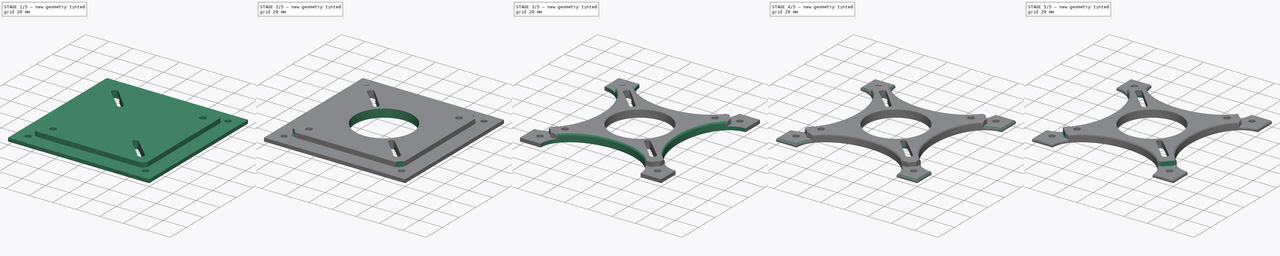
[diagram: build sequence overview — one tinted view per stage of 5, left to right]
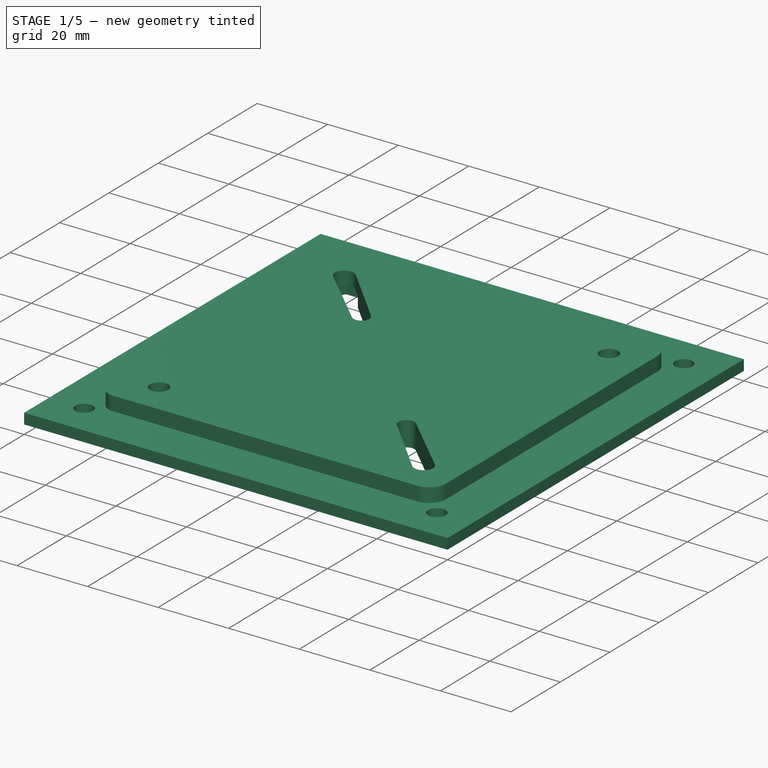
[diagram: stage 1 of 5 — iso view after this stage's code; geometry added in this stage tinted green]
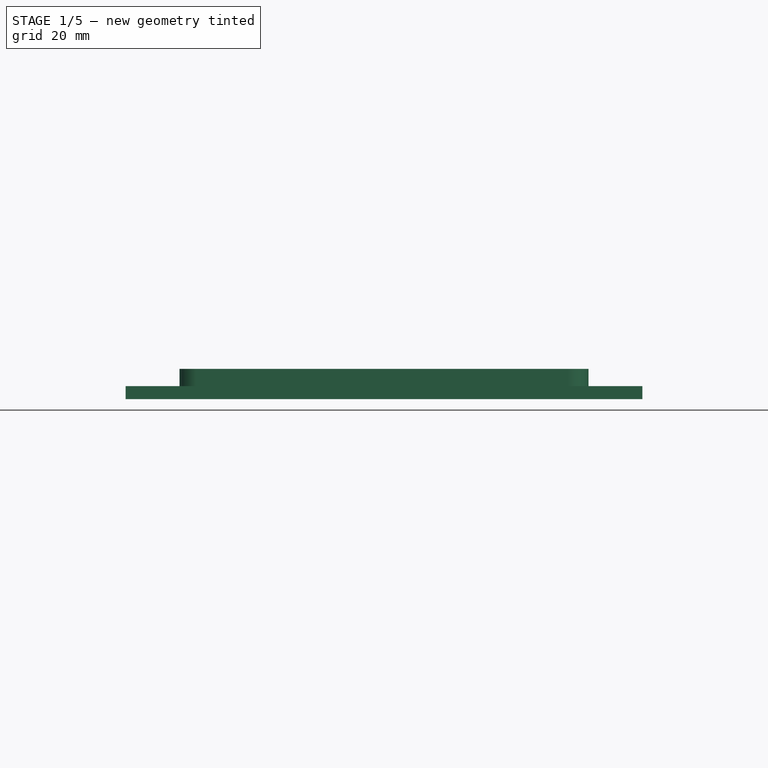
[diagram: stage 1 of 5 — front view after this stage's code; geometry added in this stage tinted green]
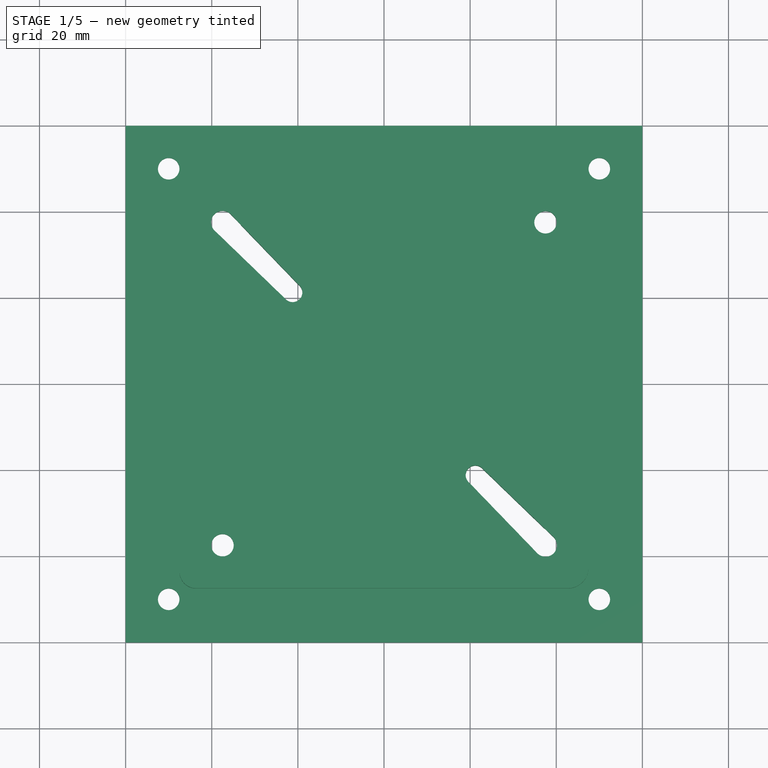
[diagram: stage 1 of 5 — top view after this stage's code; geometry added in this stage tinted green]
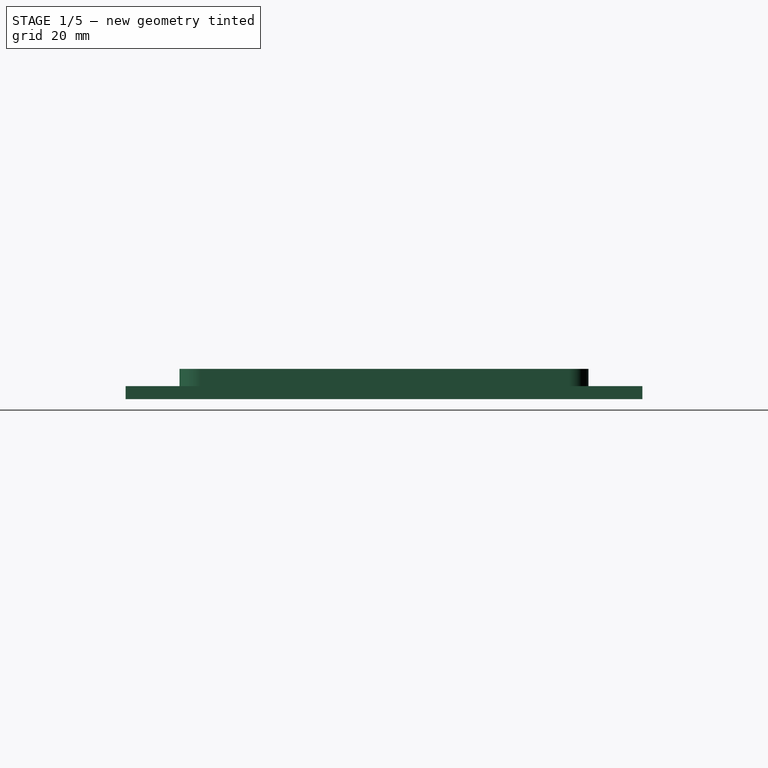
[diagram: stage 1 of 5 — right view after this stage's code; geometry added in this stage tinted green]
FCSTD DOCUMENT  (FreeCAD 0.16R4903 (Git))
Label: raspberry-vesa-support
License: All rights reserved
LicenseURL: http://en.wikipedia.org/wiki/All_rights_reserved
objects: Sketcher::SketchObject×8, PartDesign::Pocket×6, PartDesign::PolarPattern×5, PartDesign::Fillet×4, PartDesign::Pad×2, Part::Fillet×1, Part::Feature×1
note: 35 computed .brp shape members not serialized (recipe doc carries the construction recipe); baked Part::Feature solids carry a one-line shape summary decoded from their .brp

FEATURE [Sketcher::SketchObject] Sketch
  sketch-geometry (32):
    g0: LineSegment StartX=-60 StartY=60 StartZ=0 EndX=60 EndY=60 EndZ=0
    g1: LineSegment StartX=60 StartY=60 StartZ=0 EndX=60 EndY=-60 EndZ=0
    g2: LineSegment StartX=60 StartY=-60 StartZ=0 EndX=-60 EndY=-60 EndZ=0
    g3: LineSegment StartX=-60 StartY=-60 StartZ=0 EndX=-60 EndY=60 EndZ=0
    g4: Circle CenterX=-50 CenterY=50 CenterZ=0 NormalX=0 NormalY=0 NormalZ=1 Radius=2.5
    g5: Circle CenterX=50 CenterY=50 CenterZ=0 NormalX=0 NormalY=0 NormalZ=1 Radius=2.5
    g6: Circle CenterX=-50 CenterY=-50 CenterZ=0 NormalX=0 NormalY=0 NormalZ=1 Radius=2.5
    g7: Circle CenterX=50 CenterY=-50 CenterZ=0 NormalX=0 NormalY=0 NormalZ=1 Radius=2.5
    g8: LineSegment StartX=-39.8 StartY=41.4837 StartZ=0 EndX=-42.1 EndY=37.5 EndZ=0
    g9: LineSegment StartX=-42.1 StartY=37.5 StartZ=0 EndX=-39.8 EndY=33.5163 EndZ=0
    g10: LineSegment StartX=-39.8 StartY=33.5163 StartZ=0 EndX=-35.2 EndY=33.5163 EndZ=0
    g11: LineSegment StartX=-35.2 StartY=33.5163 StartZ=0 EndX=-32.9 EndY=37.5 EndZ=0
    g12: LineSegment StartX=-32.9 StartY=37.5 StartZ=0 EndX=-35.2 EndY=41.4837 EndZ=0
    g13: LineSegment StartX=-35.2 StartY=41.4837 StartZ=0 EndX=-39.8 EndY=41.4837 EndZ=0
    g14: LineSegment StartX=35.2 StartY=41.4837 StartZ=0 EndX=32.9 EndY=37.5 EndZ=0
    g15: LineSegment StartX=32.9 StartY=37.5 StartZ=0 EndX=35.2 EndY=33.5163 EndZ=0
    g16: LineSegment StartX=35.2 StartY=33.5163 StartZ=0 EndX=39.8 EndY=33.5163 EndZ=0
    g17: LineSegment StartX=39.8 StartY=33.5163 StartZ=0 EndX=42.1 EndY=37.5 EndZ=0
    g18: LineSegment StartX=42.1 StartY=37.5 StartZ=0 EndX=39.8 EndY=41.4837 EndZ=0
    g19: LineSegment StartX=39.8 StartY=41.4837 StartZ=0 EndX=35.2 EndY=41.4837 EndZ=0
    g20: LineSegment StartX=-35.2 StartY=-33.5163 StartZ=0 EndX=-39.8 EndY=-33.5163 EndZ=0
    g21: LineSegment StartX=-39.8 StartY=-33.5163 StartZ=0 EndX=-42.1 EndY=-37.5 EndZ=0
    g22: LineSegment StartX=-42.1 StartY=-37.5 StartZ=0 EndX=-39.8 EndY=-41.4837 EndZ=0
    g23: LineSegment StartX=-39.8 StartY=-41.4837 StartZ=0 EndX=-35.2 EndY=-41.4837 EndZ=0
    g24: LineSegment StartX=-35.2 StartY=-41.4837 StartZ=0 EndX=-32.9 EndY=-37.5 EndZ=0
    g25: LineSegment StartX=-32.9 StartY=-37.5 StartZ=0 EndX=-35.2 EndY=-33.5163 EndZ=0
    g26: LineSegment StartX=39.8 StartY=-33.5163 StartZ=0 EndX=35.2 EndY=-33.5163 EndZ=0
    g27: LineSegment StartX=35.2 StartY=-33.5163 StartZ=0 EndX=32.9 EndY=-37.5 EndZ=0
    g28: LineSegment StartX=32.9 StartY=-37.5 StartZ=0 EndX=35.2 EndY=-41.4837 EndZ=0
    g29: LineSegment StartX=35.2 StartY=-41.4837 StartZ=0 EndX=39.8 EndY=-41.4837 EndZ=0
    g30: LineSegment StartX=39.8 StartY=-41.4837 StartZ=0 EndX=42.1 EndY=-37.5 EndZ=0
    g31: LineSegment StartX=42.1 StartY=-37.5 StartZ=0 EndX=39.8 EndY=-33.5163 EndZ=0
  constraints (81):
    c: Coincident(g0,g1)
    c: Coincident(g1,g2)
    c: Coincident(g2,g3)
    c: Coincident(g3,g0)
    c: Horizontal(g0)
    c: Horizontal(g2)
    c: Vertical(g1)
    c: Vertical(g3)
    c: DistanceX(g0) = 120
    c: DistanceY(g3) = 120
    c: DistanceX(g4,g5) = 100
    c: Symmetric(g4,g5,g-2)
    c: Symmetric(g4,g6,g-1)
    c: Symmetric(g5,g7,g-1)
    c: DistanceY(g4,g6) = -100
    c: Symmetric(g0,g2,g-1)
    c: Symmetric(g0,g0,g-2)
    c: Radius(g4) = 2.5
    c: Radius(g5) = 2.5
    c: Radius(g6) = 2.5
    c: Radius(g7) = 2.5
    c: Coincident(g8,g9)
    c: Coincident(g9,g10)
    c: Coincident(g10,g11)
    c: Coincident(g11,g12)
    c: Coincident(g12,g13)
    c: Coincident(g13,g8)
    c: Equal(g11,g10)
    c: Equal(g10,g9)
    c: Equal(g9,g8)
    c: Equal(g8,g13)
    c: Equal(g13,g12)
    c: Angle(g9,g8) = 2.0944
    c: Angle(g13,g12) = 2.0944
    c: Angle(g11,g10) = 2.0944
    c: Horizontal(g13)
    c: Coincident(g14,g15)
    c: Coincident(g15,g16)
    c: Coincident(g16,g17)
    c: Coincident(g17,g18)
    c: Coincident(g18,g19)
    c: Coincident(g19,g14)
    c: Equal(g14,g19)
    c: Equal(g19,g15)
    c: Equal(g15,g16)
    c: Equal(g16,g17)
    c: Equal(g17,g18)
    c: Angle(g17,g16) = 2.0944
    c: Angle(g15,g14) = 2.0944
    c: Angle(g19,g18) = 2.0944
    c: Horizontal(g19)
    c: Coincident(g20,g21)
    c: Coincident(g21,g22)
    c: Coincident(g22,g23)
    c: Coincident(g23,g24)
    c: Coincident(g24,g25)
    c: Coincident(g25,g20)
    c: Equal(g21,g20)
    c: Equal(g20,g25)
    c: Equal(g25,g24)
    c: Equal(g24,g23)
    c: Equal(g23,g22)
    c: Angle(g21,g20) = 2.0944
    c: Angle(g23,g22) = 2.0944
    c: Angle(g25,g24) = 2.0944
    c: Horizontal(g20)
    c: Coincident(g26,g27)
    c: Coincident(g27,g28)
    c: Coincident(g28,g29)
    c: Coincident(g29,g30)
    c: Coincident(g30,g31)
    c: Coincident(g31,g26)
    c: Equal(g26,g27)
    c: Equal(g27,g28)
    c: Equal(g28,g29)
    c: Equal(g29,g30)
    c: Equal(g30,g31)
    c: Angle(g31,g30) = 2.0944
    c: Angle(g27,g26) = 2.0944
    c: Angle(g29,g28) = 2.0944
    c: Horizontal(g26)
FEATURE [PartDesign::Pad] Pad
  Length = 3
  Length2 = 100
  Sketch = -> Sketch
  Type = 0
FEATURE [Sketcher::SketchObject] Sketch001
  Placement = pos=(0,0,3) rot=(0,0,1;0rad)
  Support = -> Pad [Face34]
  sketch-geometry (12):
    g0: LineSegment StartX=-43 StartY=47.5 StartZ=0 EndX=43 EndY=47.5 EndZ=0
    g1: LineSegment StartX=47.5 StartY=43 StartZ=0 EndX=47.5 EndY=-42.6587 EndZ=0
    g2: LineSegment StartX=42.6587 StartY=-47.5 StartZ=0 EndX=-43.6106 EndY=-47.5 EndZ=0
    g3: LineSegment StartX=-47.5 StartY=-43.6106 StartZ=0 EndX=-47.5 EndY=43 EndZ=0
    g4: Circle CenterX=-37.5 CenterY=37.5 CenterZ=0 NormalX=0 NormalY=0 NormalZ=1 Radius=2.6
    g5: Circle CenterX=37.5 CenterY=37.5 CenterZ=0 NormalX=0 NormalY=0 NormalZ=1 Radius=2.6
    g6: Circle CenterX=-37.5 CenterY=-37.5 CenterZ=0 NormalX=0 NormalY=0 NormalZ=1 Radius=2.6
    g7: Circle CenterX=37.5 CenterY=-37.5 CenterZ=0 NormalX=0 NormalY=0 NormalZ=1 Radius=2.6
    g8: ArcOfCircle CenterX=-43 CenterY=43 CenterZ=0 NormalX=0 NormalY=0 NormalZ=1 Radius=4.5 StartAngle=1.5708 EndAngle=3.14159
    g9: ArcOfCircle CenterX=43 CenterY=43 CenterZ=0 NormalX=0 NormalY=0 NormalZ=1 Radius=4.5 StartAngle=0 EndAngle=1.5708
    g10: ArcOfCircle CenterX=-43.6106 CenterY=-43.6106 CenterZ=0 NormalX=0 NormalY=0 NormalZ=1 Radius=3.88943 StartAngle=3.14159 EndAngle=4.71239
    g11: ArcOfCircle CenterX=42.6587 CenterY=-42.6587 CenterZ=0 NormalX=0 NormalY=0 NormalZ=1 Radius=4.84125 StartAngle=4.71239 EndAngle=6.28319
  constraints (21):
    c: Horizontal(g0)
    c: Horizontal(g2)
    c: Vertical(g1)
    c: Vertical(g3)
    c: Symmetric(g4,g5,g-2)
    c: Symmetric(g4,g6,g-1)
    c: Symmetric(g7,g5,g-1)
    c: Radius(g4) = 2.6
    c: Radius(g5) = 2.6
    c: Radius(g6) = 2.6
    c: Radius(g7) = 2.6
    c: DistanceX(g4,g5) = 75
    c: DistanceY(g4,g6) = -75
    c: Tangent(g0,g8) = 1.5708
    c: Tangent(g3,g8) = 1.5708
    c: Tangent(g1,g9) = 1.5708
    c: Tangent(g0,g9) = 1.5708
    c: Tangent(g3,g10) = 1.5708
    c: Tangent(g2,g10) = 1.5708
    c: Tangent(g2,g11) = 1.5708
    c: Tangent(g1,g11) = 1.5708
FEATURE [PartDesign::Pad] Pad001
  Length = 4
  Length2 = 100
  Sketch = -> Sketch001
  Type = 0
FEATURE [Sketcher::SketchObject] Sketch002
  Placement = pos=(0,0,7) rot=(0,0,1;0rad)
  Support = -> Pad001 [Face47]
  sketch-geometry (7):
    g0: LineSegment [constr] StartX=-54.643 StartY=54.643 StartZ=0 EndX=0 EndY=0 EndZ=0
    g1: Circle [constr] CenterX=0 CenterY=0 CenterZ=0 NormalX=0 NormalY=0 NormalZ=1 Radius=29
    g2: ArcOfCircle CenterX=-21.2132 CenterY=21.2132 CenterZ=0 NormalX=0 NormalY=0 NormalZ=1 Radius=2.25 StartAngle=3.94458 EndAngle=7.05076
    g3: Circle [constr] CenterX=0 CenterY=0 CenterZ=0 NormalX=0 NormalY=0 NormalZ=1 Radius=25
    g4: LineSegment StartX=-39.3478 StartY=35.5934 StartZ=0 EndX=-22.776 EndY=19.5945 EndZ=0
    g5: LineSegment StartX=-35.5885 StartY=39.3505 StartZ=0 EndX=-19.5941 EndY=22.7756 EndZ=0
    g6: ArcOfCircle CenterX=-37.5014 CenterY=37.5052 CenterZ=0 NormalX=0 NormalY=0 NormalZ=1 Radius=2.65787 StartAngle=0.767419 EndAngle=3.94442
  constraints (13):
    c: Coincident(g0,g-1)
    c: Angle(g0) = -0.785398
    c: Radius(g1) = 29
    c: Coincident(g-1,g1)
    c: Radius(g2) = 2.25
    c: PointOnObject(g2,g0)
    c: Distance(g-1,g2) = 30
    c: Radius(g3) = 25
    c: Coincident(g3,g-1)
    c: Coincident(g6,g5)
    c: Coincident(g6,g4)
    c: PointOnObject(g2,g5)
    c: Coincident(g2,g4)
FEATURE [PartDesign::Pocket] Pocket
  Length = 5
  Sketch = -> Sketch002
  Type = 1
FEATURE [PartDesign::PolarPattern] PolarPattern
  Angle = 360
  Axis = -> Sketch002 [N_Axis]
  Occurrences = 2
  Originals = -> [Pocket]
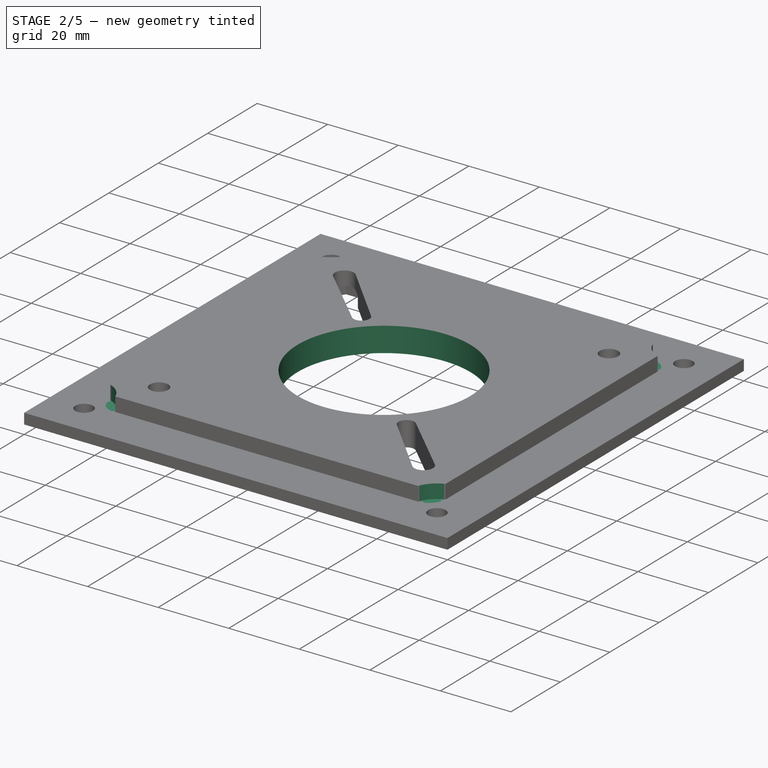
[diagram: stage 2 of 5 — iso view after this stage's code; geometry added in this stage tinted green]
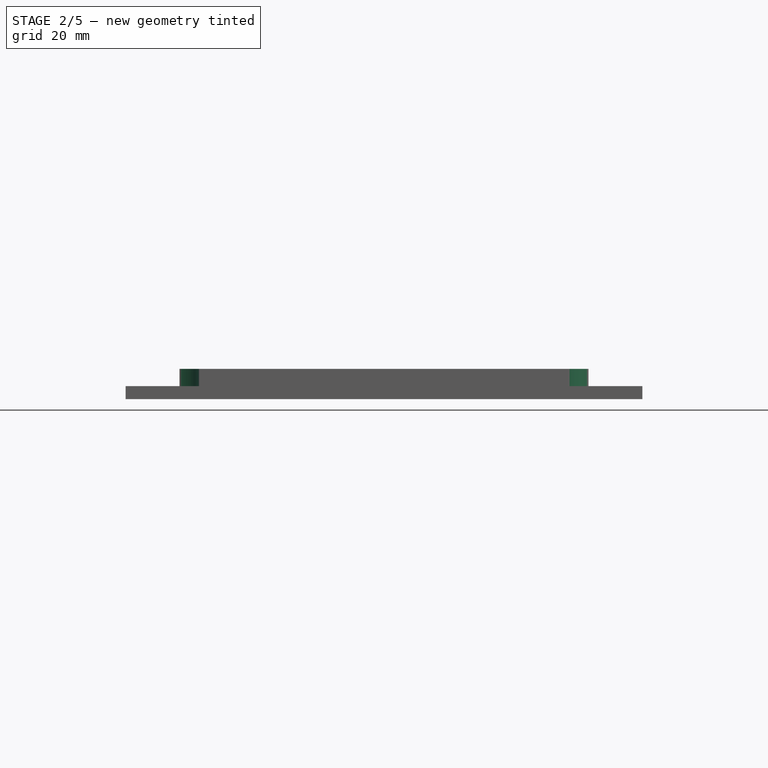
[diagram: stage 2 of 5 — front view after this stage's code; geometry added in this stage tinted green]
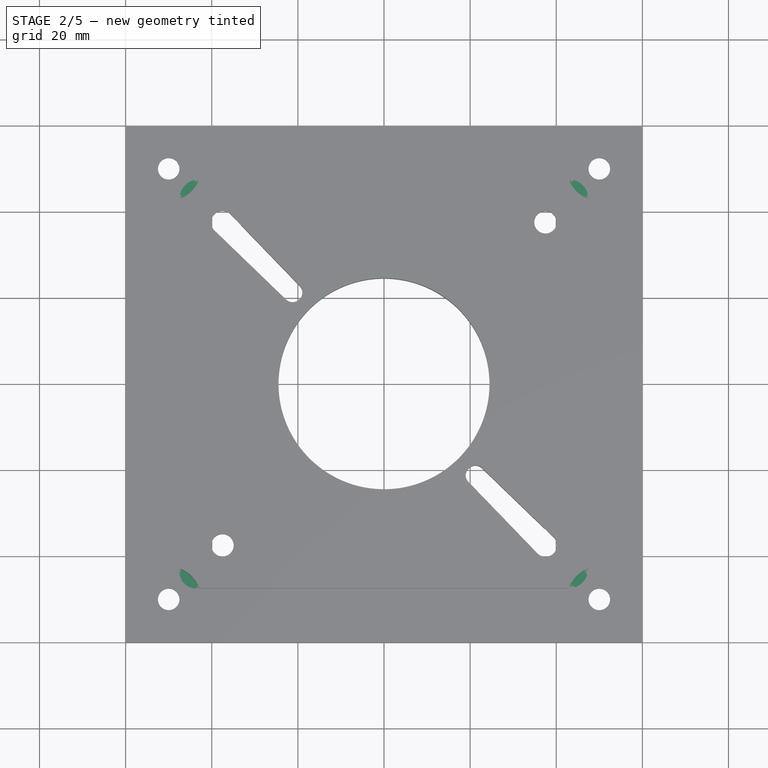
[diagram: stage 2 of 5 — top view after this stage's code; geometry added in this stage tinted green]
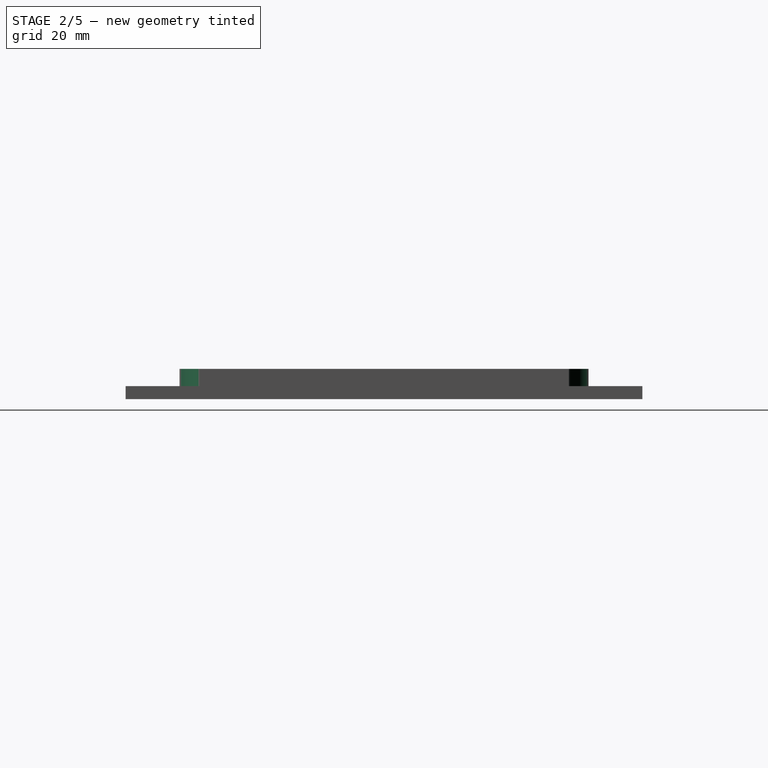
[diagram: stage 2 of 5 — right view after this stage's code; geometry added in this stage tinted green]
FEATURE [Sketcher::SketchObject] Sketch003
  Placement = pos=(0,0,7) rot=(0,0,1;0rad)
  Support = -> PolarPattern [Face50]
  sketch-geometry (1):
    g0: Circle CenterX=0 CenterY=0 CenterZ=0 NormalX=0 NormalY=0 NormalZ=1 Radius=24.5
  constraints (2):
    c: Radius(g0) = 24.5
    c: Coincident(g-1,g0)
FEATURE [PartDesign::Pocket] Pocket001
  Length = 5
  Sketch = -> Sketch003
  Type = 1
FEATURE [Sketcher::SketchObject] Sketch005
  ExternalGeometry = -> [Pocket001]
  Placement = pos=(0,0,7) rot=(0,0,1;0rad)
  Support = -> Pocket001 [Face52]
  sketch-geometry (1):
    g0: Circle CenterX=-50 CenterY=50 CenterZ=0 NormalX=0 NormalY=0 NormalZ=1 Radius=7.5
  constraints (2):
    c: Radius(g0) = 7.5
    c: Coincident(g0,g-3)
FEATURE [PartDesign::Pocket] Pocket003
  Length = 4
  Sketch = -> Sketch005
  Type = 0
FEATURE [PartDesign::PolarPattern] PolarPattern001
  Angle = 360
  Axis = -> Sketch005 [N_Axis]
  Occurrences = 4
  Originals = -> [Pocket003]
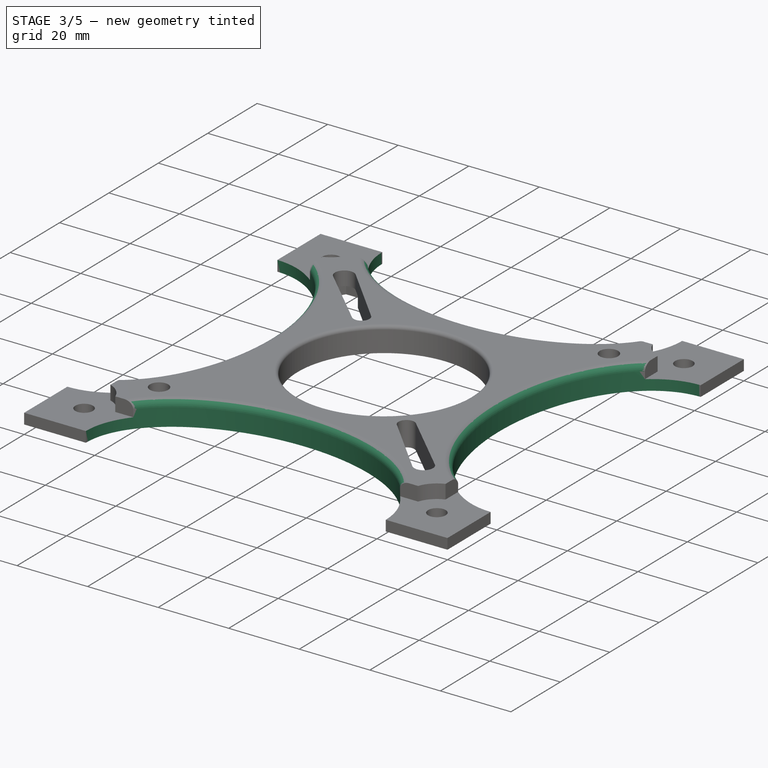
[diagram: stage 3 of 5 — iso view after this stage's code; geometry added in this stage tinted green]
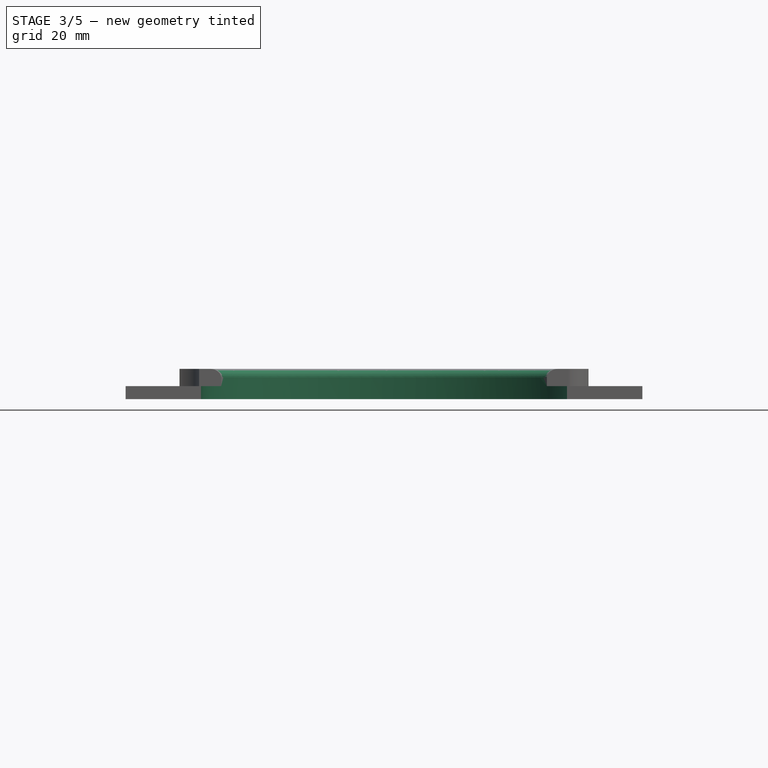
[diagram: stage 3 of 5 — front view after this stage's code; geometry added in this stage tinted green]
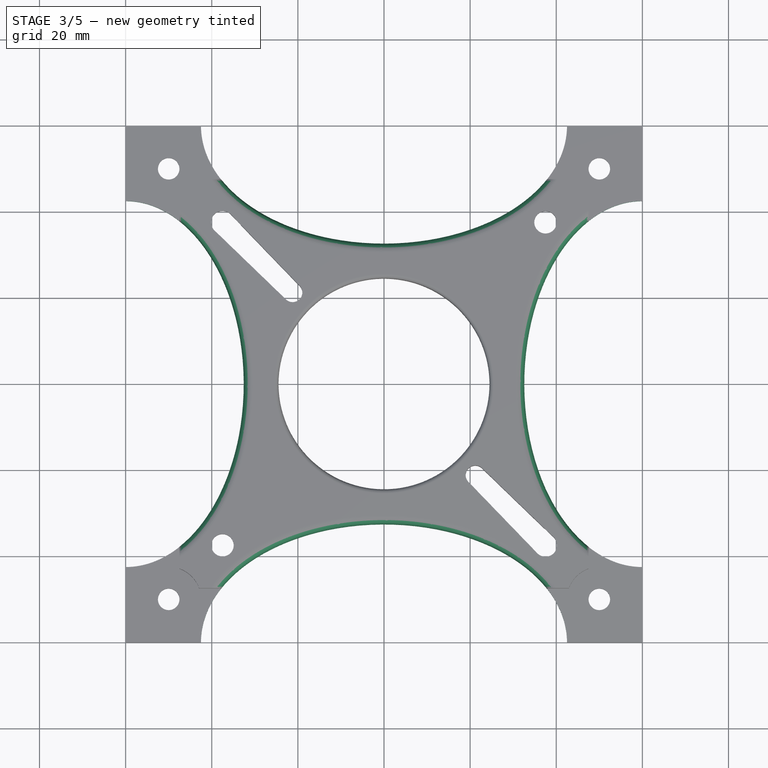
[diagram: stage 3 of 5 — top view after this stage's code; geometry added in this stage tinted green]
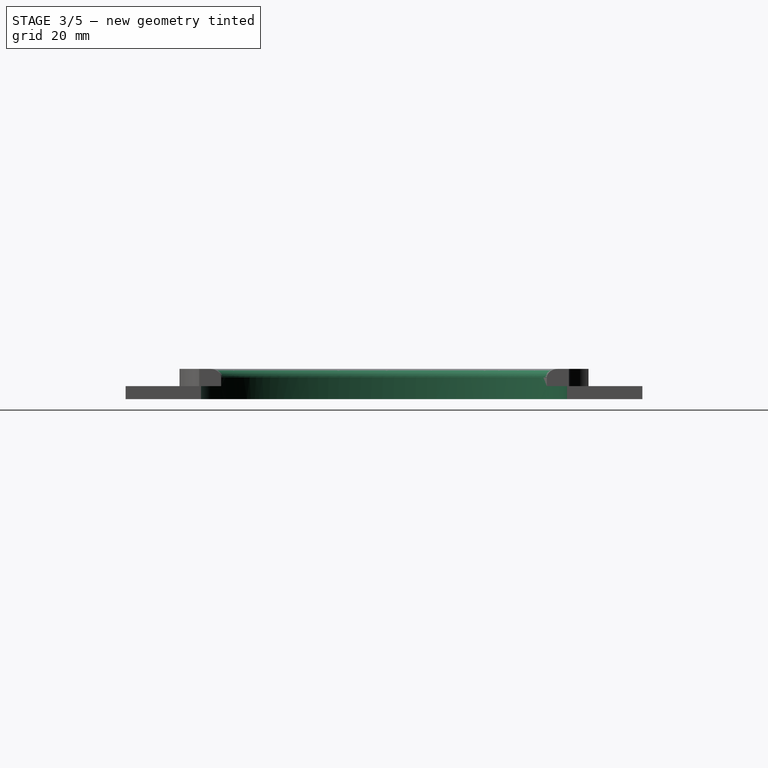
[diagram: stage 3 of 5 — right view after this stage's code; geometry added in this stage tinted green]
FEATURE [Sketcher::SketchObject] Sketch006
  ExternalGeometry = -> [PolarPattern001]
  Placement = pos=(0,0,7) rot=(0,0,1;0rad)
  Support = -> PolarPattern001 [Face54]
  sketch-geometry (6):
    g0: LineSegment StartX=-60 StartY=42.5 StartZ=0 EndX=-60 EndY=-42.5 EndZ=0
    g1: ArcOfEllipse CenterX=-60 CenterY=0 CenterZ=0 NormalX=0 NormalY=0 NormalZ=1 MajorRadius=42.5 MinorRadius=27.4286 AngleXU=-1.5708 StartAngle=0 EndAngle=3.14159
    g2: LineSegment [constr] StartX=-60 StartY=-42.5 StartZ=0 EndX=-60 EndY=42.5 EndZ=0
    g3: LineSegment [constr] StartX=-32.5714 StartY=0 StartZ=0 EndX=-87.4286 EndY=0 EndZ=0
    g4: GeomPoint [constr] X=-60 Y=-32.4642 Z=0
    g5: GeomPoint [constr] X=-60 Y=32.4642 Z=0
  constraints (9):
    c: Vertical(g0)
    c: Distance(g0) = 85
    c: InternalAlignment(g2-g5 -> g1) x4
    c: Coincident(g2,g0)
    c: Coincident(g2,g0)
    c: PointOnObject(g1,g-3)
    c: Symmetric(g0,g0,g-1)
    c: Coincident(g1,g0)
    c: PointOnObject(g1,g0)
FEATURE [PartDesign::Pocket] Pocket004
  Length = 5
  Sketch = -> Sketch006
  Type = 1
FEATURE [PartDesign::PolarPattern] PolarPattern002
  Angle = 360
  Axis = -> Sketch006 [N_Axis]
  Occurrences = 4
  Originals = -> [Pocket004]
FEATURE [PartDesign::Fillet] Fillet
  Base = -> PolarPattern002 [Edge53,Edge90,Edge80,Edge70]
  Radius = 2
FEATURE [PartDesign::Fillet] Fillet001
  Base = -> Fillet [Edge93]
  Radius = 1
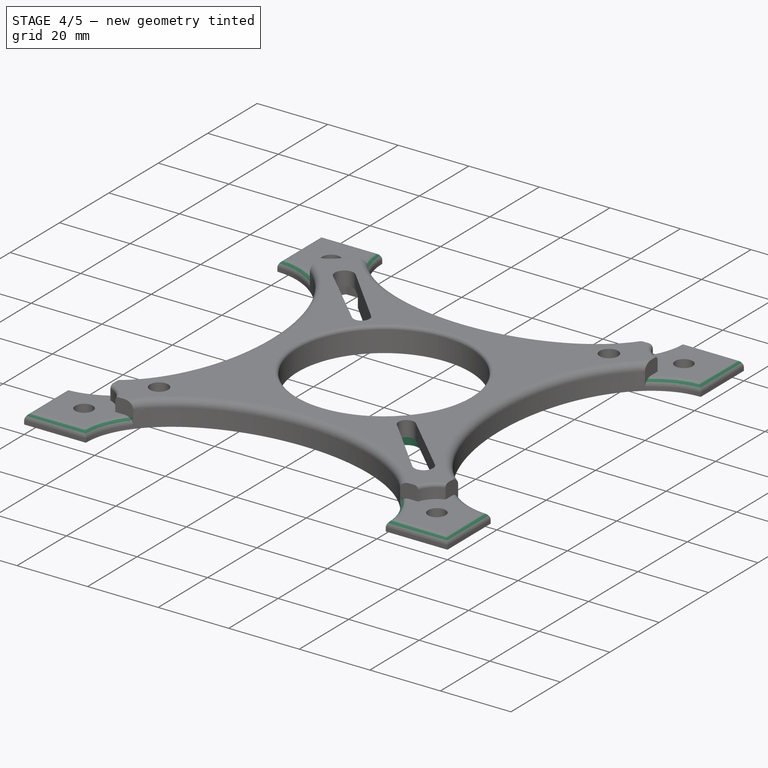
[diagram: stage 4 of 5 — iso view after this stage's code; geometry added in this stage tinted green]
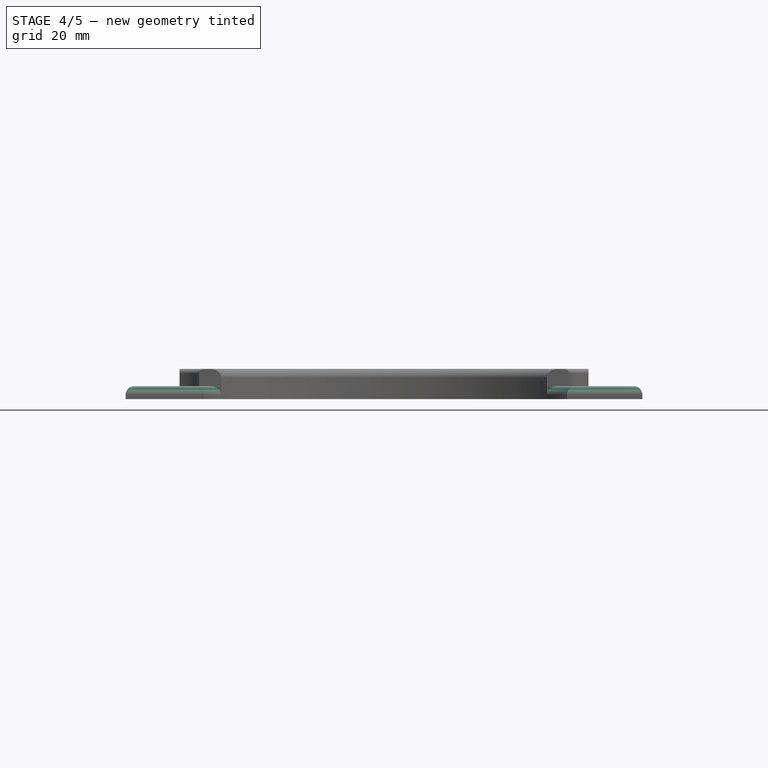
[diagram: stage 4 of 5 — front view after this stage's code; geometry added in this stage tinted green]
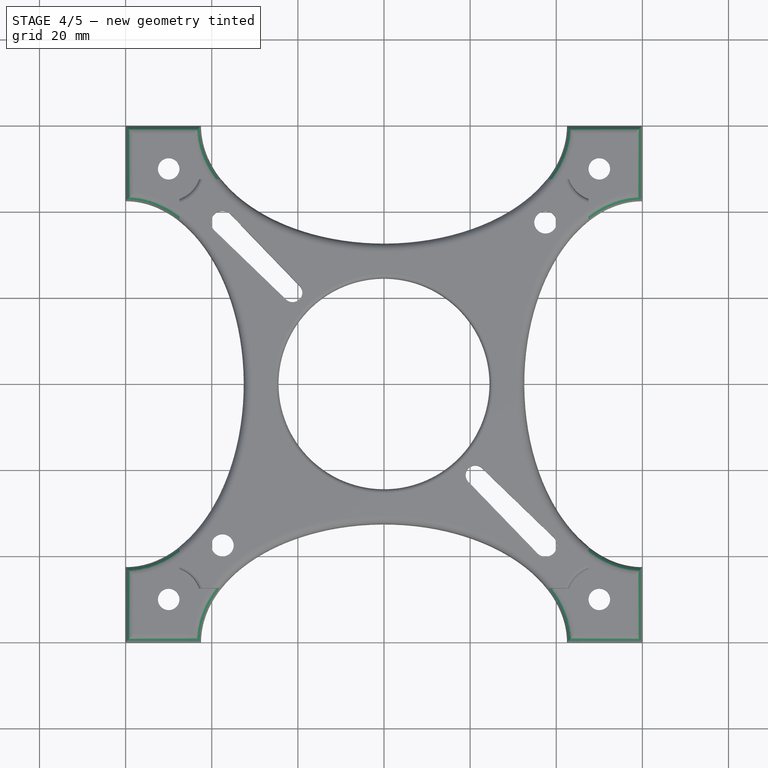
[diagram: stage 4 of 5 — top view after this stage's code; geometry added in this stage tinted green]
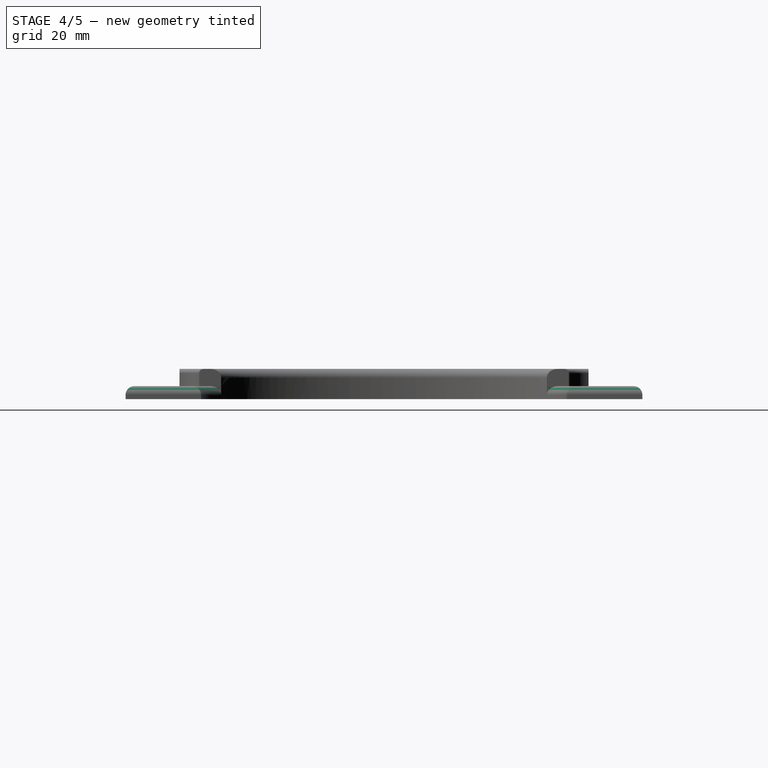
[diagram: stage 4 of 5 — right view after this stage's code; geometry added in this stage tinted green]
FEATURE [PartDesign::Fillet] Fillet002
  Base = -> Fillet001 [Edge108,Edge123,Edge119,Edge120,Edge132,Edge140,Edge142,Edge141,Edge139,Edge135,Edge136,Edge124,Edge115,Edge111,Edge112,Edge106]
  Radius = 2
FEATURE [PartDesign::Fillet] Fillet003
  Base = -> Fillet002 [Edge31,Edge13,Edge38,Edge39]
  Radius = 1
FEATURE [Sketcher::SketchObject] Sketch007
  ExternalGeometry = -> [Fillet003]
  Placement = pos=(0,0,0) rot=(1,0,0;3.14159rad)
  Support = -> Fillet003 [Face38]
  sketch-geometry (8):
    g0: LineSegment [constr] StartX=56.0822 StartY=56.0822 StartZ=0 EndX=0 EndY=0 EndZ=0
    g1: ArcOfCircle CenterX=38.0662 CenterY=38.0662 CenterZ=0 NormalX=0 NormalY=0 NormalZ=1 Radius=4.75668 StartAngle=0.785398 EndAngle=2.40931
    g2: ArcOfCircle CenterX=21.2132 CenterY=21.2132 CenterZ=0 NormalX=0 NormalY=0 NormalZ=1 Radius=3.5 StartAngle=2.36769 EndAngle=5.48652
    g3: LineSegment StartX=34.5289 StartY=41.2463 StartZ=0 EndX=18.71 EndY=23.6595 EndZ=0
    g4: LineSegment StartX=41.2472 StartY=34.5296 StartZ=0 EndX=23.66 EndY=18.7106 EndZ=0
    g5: ArcOfCircle CenterX=38.0662 CenterY=38.0662 CenterZ=0 NormalX=0 NormalY=0 NormalZ=1 Radius=4.75668 StartAngle=5.44491 EndAngle=7.06858
    g6: LineSegment [constr] StartX=18.71 StartY=23.6595 StartZ=0 EndX=23.66 EndY=18.7106 EndZ=0
    g7: LineSegment [constr] StartX=34.5289 StartY=41.2463 StartZ=0 EndX=41.2472 EndY=34.5296 EndZ=0
  constraints (22):
    c: Coincident(g0,g-1)
    c: Angle(g0) = -2.35619
    c: PointOnObject(g1,g0)
    c: Coincident(g2,g-3)
    c: Radius(g2) = 3.5
    c: Tangent(g4,g1) = 1.5708
    c: PointOnObject(g1,g3)
    c: PointOnObject(g1,g0)
    c: Coincident(g2,g3)
    c: Coincident(g2,g4)
    c: Coincident(g5,g4)
    c: Coincident(g5,g1)
    c: Coincident(g1,g3)
    c: PointOnObject(g-3,g6)
    c: PointOnObject(g-3,g6)
    c: Coincident(g6,g2)
    c: Coincident(g2,g6)
    c: Coincident(g4,g7)
    c: Coincident(g1,g7)
    c: Parallel(g7,g6)
    c: Distance(g7) = 9.5
    c: Coincident(g1,g5)
FEATURE [PartDesign::Pocket] Pocket005
  Length = 2.6
  Sketch = -> Sketch007
  Type = 0
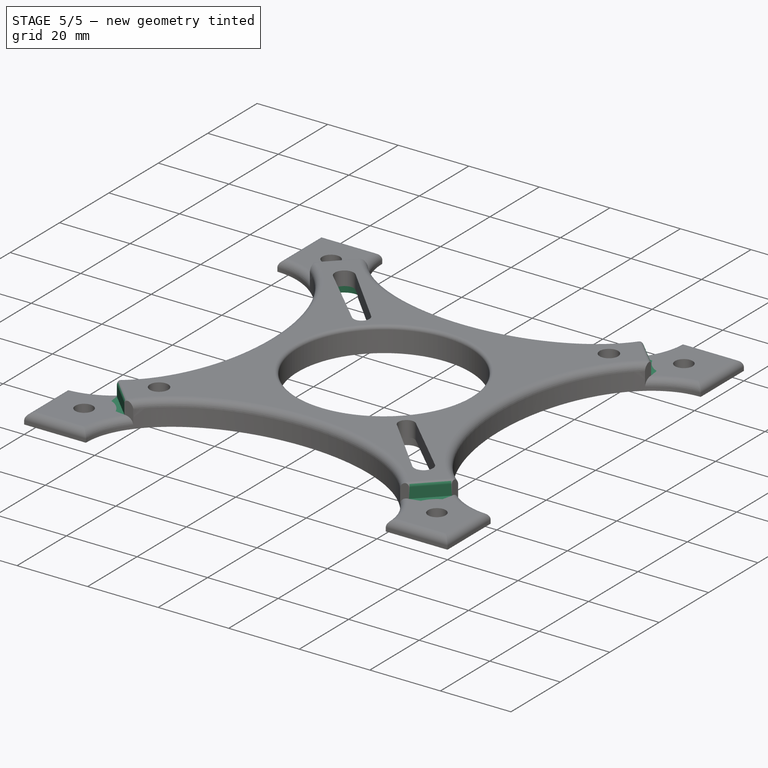
[diagram: stage 5 of 5 — iso view after this stage's code; geometry added in this stage tinted green]
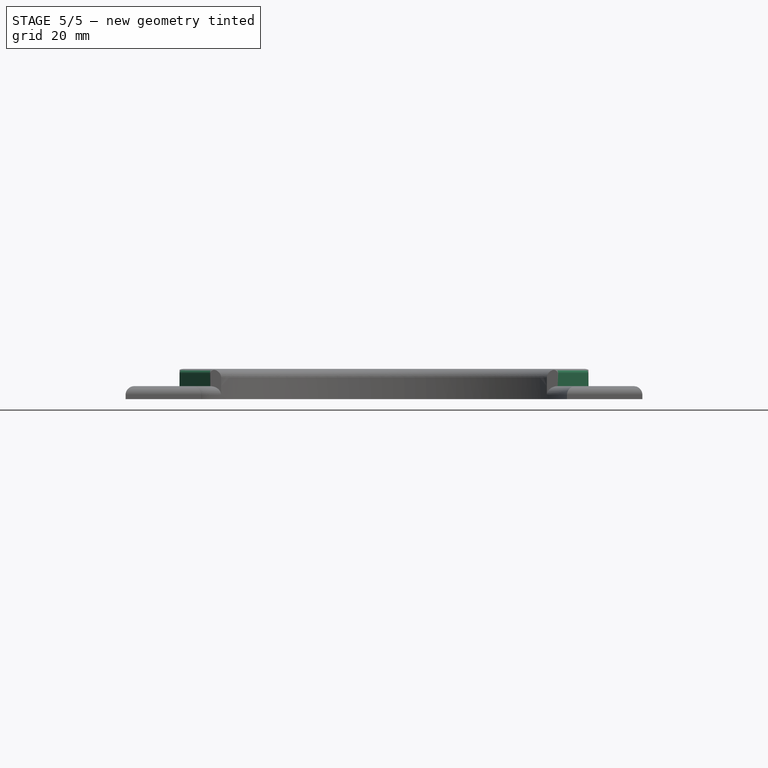
[diagram: stage 5 of 5 — front view after this stage's code; geometry added in this stage tinted green]
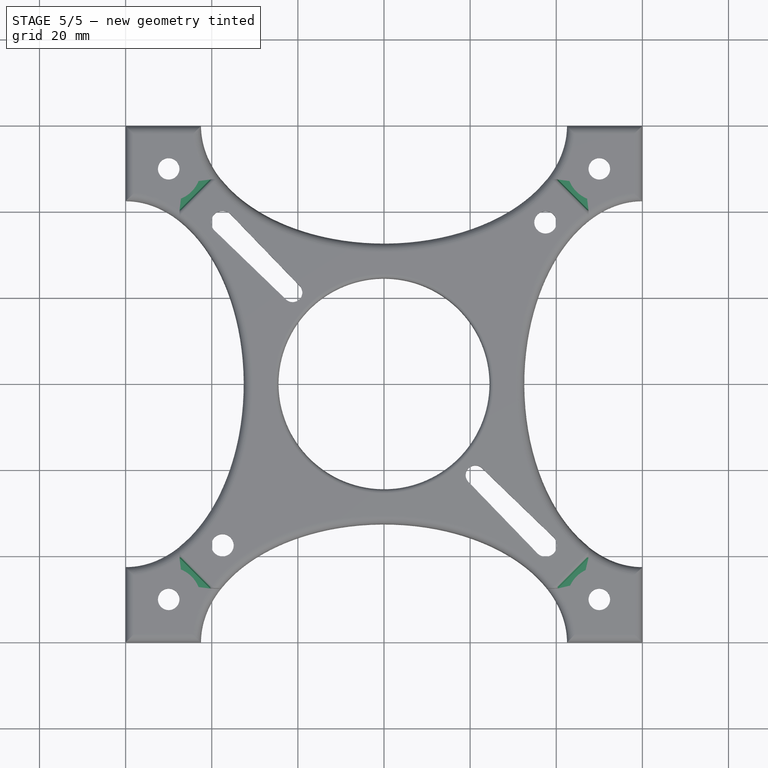
[diagram: stage 5 of 5 — top view after this stage's code; geometry added in this stage tinted green]
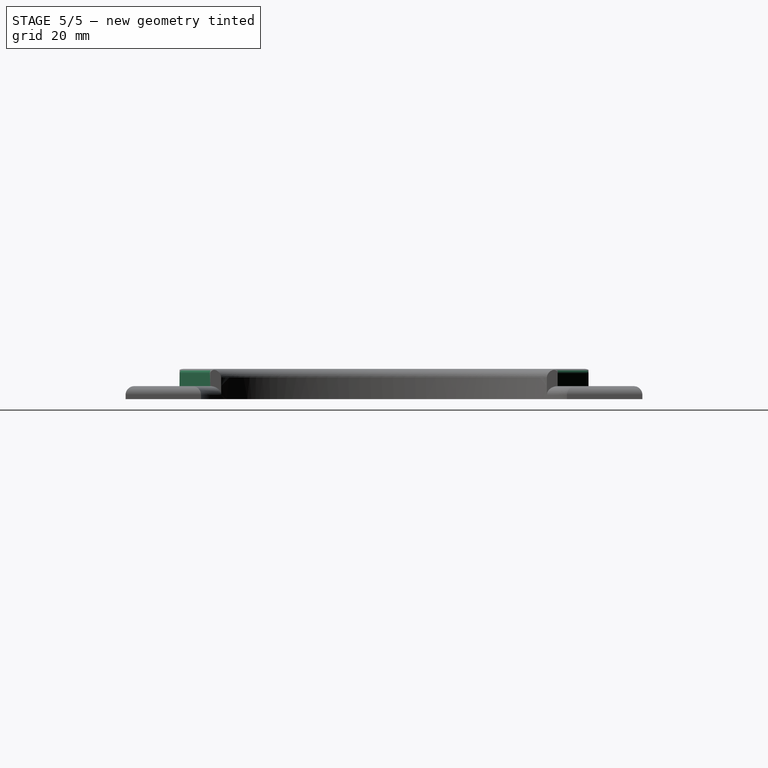
[diagram: stage 5 of 5 — right view after this stage's code; geometry added in this stage tinted green]
FEATURE [PartDesign::PolarPattern] PolarPattern003  label="VesaVersion_5b"
  Angle = 360
  Axis = -> Sketch007 [N_Axis]
  Occurrences = 4
  Originals = -> [Pocket005]
FEATURE [Sketcher::SketchObject] Sketch008
  ExternalGeometry = -> [PolarPattern003]
  Placement = pos=(0,0,7) rot=(0,0,1;0rad)
  Support = -> PolarPattern003 [Face5]
  sketch-geometry (5):
    g0: LineSegment StartX=-52.6635 StartY=35.1635 StartZ=0 EndX=-35.1635 EndY=52.6635 EndZ=0
    g1: LineSegment StartX=-42.5 StartY=60 StartZ=0 EndX=-35.1635 EndY=52.6635 EndZ=0
    g2: LineSegment StartX=-60 StartY=42.5 StartZ=0 EndX=-52.6635 EndY=35.1635 EndZ=0
    g3: LineSegment StartX=-60 StartY=60 StartZ=0 EndX=-60 EndY=42.5 EndZ=0
    g4: LineSegment StartX=-60 StartY=60 StartZ=0 EndX=-42.5 EndY=60 EndZ=0
  constraints (12):
    c: PointOnObject(g-4,g0)
    c: PointOnObject(g-5,g0)
    c: Coincident(g1,g0)
    c: Coincident(g1,g-6)
    c: Coincident(g2,g0)
    c: Perpendicular(g0,g1)
    c: Perpendicular(g2,g0)
    c: Coincident(g2,g-7)
    c: Coincident(g3,g2)
    c: Coincident(g3,g-7)
    c: Coincident(g4,g1)
    c: Coincident(g4,g3)
FEATURE [PartDesign::Pocket] Pocket006
  Length = 4
  Sketch = -> Sketch008
  Type = 0
FEATURE [PartDesign::PolarPattern] PolarPattern004
  Angle = 360
  Axis = -> Sketch008 [N_Axis]
  Occurrences = 4
  Originals = -> [Pocket006]
FEATURE [Part::Fillet] Fillet004
  Base = -> PolarPattern004
  Edges = 4 edges r=1: [Edge19,Edge48,Edge50,Edge52]
FEATURE [Part::Feature] Fillet004001  label="Fillet005"
  shape: bbox 121.5 x 121.5 x 7.011 mm, 142 faces (baked)
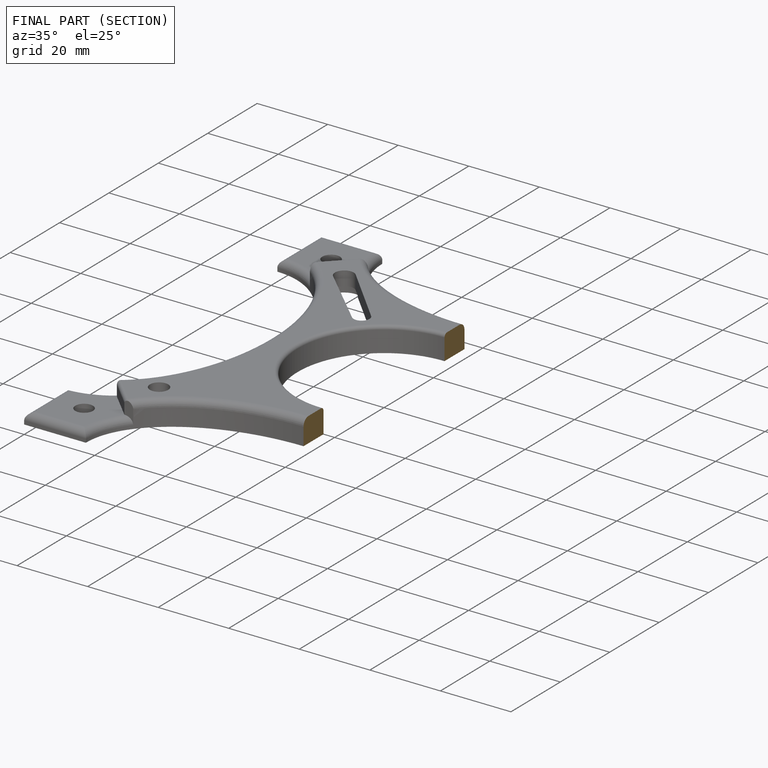
[diagram: finished part — half-section view (interior)]
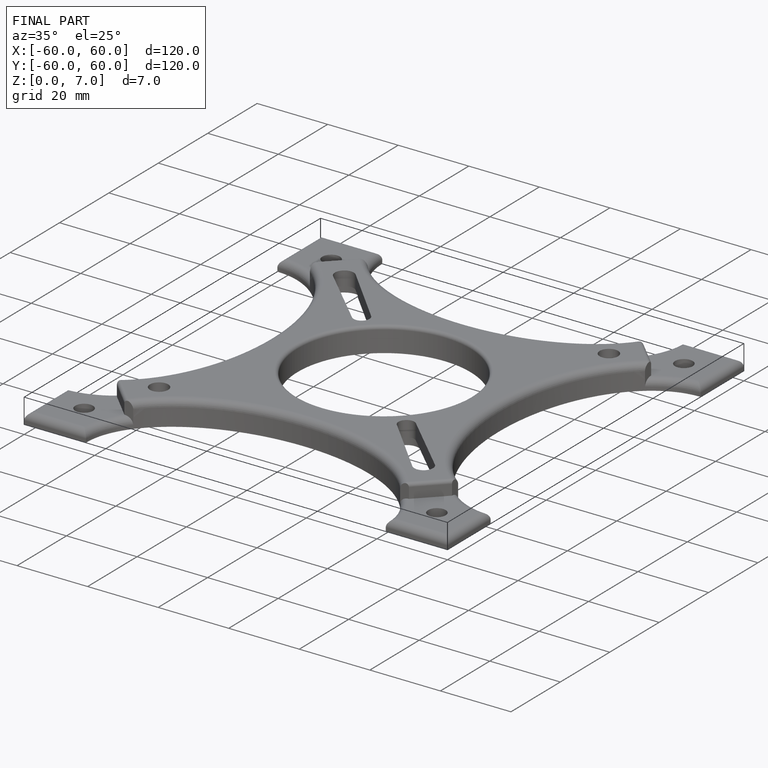
[diagram: finished part — iso view with bounding-box wireframe]
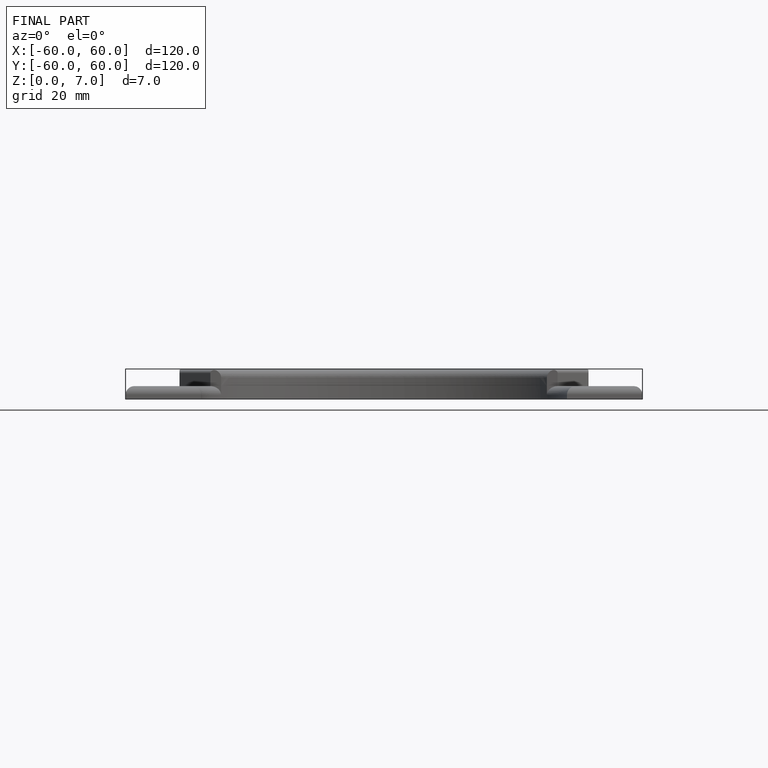
[diagram: finished part — front view with bounding-box wireframe]
